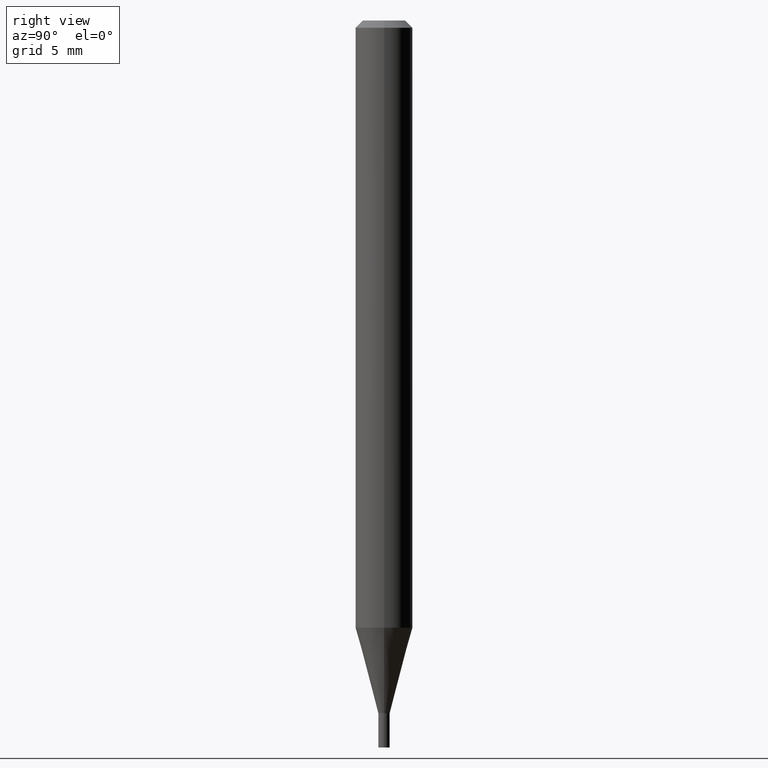
[diagram: clean part render]
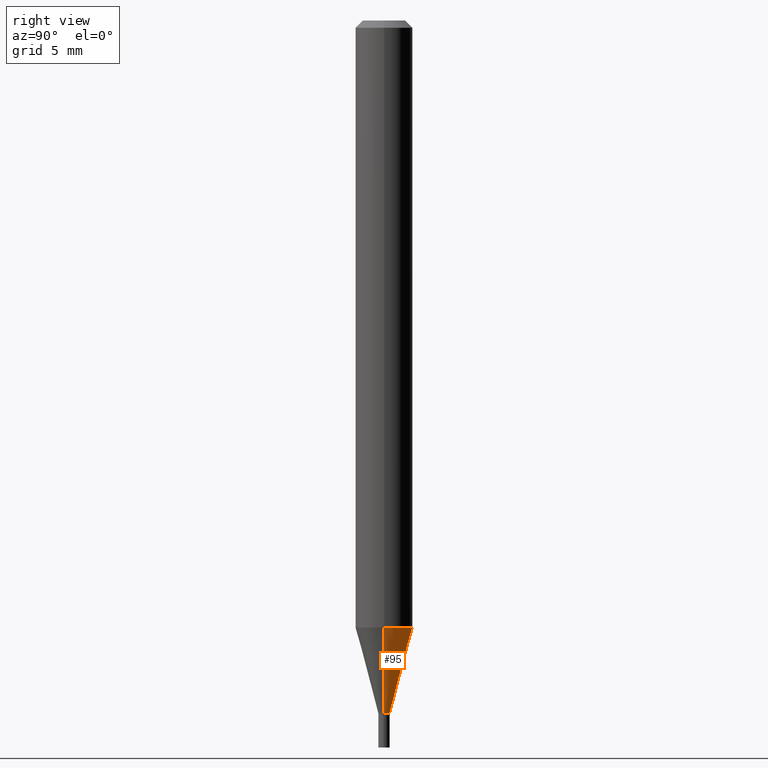
[diagram: same view with one face highlighted and labeled with its STEP entity id]
A machine part, right view. The second image highlights one B-rep face of the part: STEP entity #95.
In plain terms, the highlighted conical surface has half-angle 15 deg.
Its self-contained STEP definition (entity closure, byte-faithful):
#8 = EDGE_CURVE ( 'NONE', #189, #307, #401, .T. ) ;
#47 = DIRECTION ( 'NONE',  ( 0.2588190451025216832, 1.565188264969619798E-15, 0.9659258262890679791 ) ) ;
#57 = FACE_OUTER_BOUND ( 'NONE', #461, .T. ) ;
#65 = CONICAL_SURFACE ( 'NONE', #228, 0.01179999999999992340, 0.2617993877991502960 ) ;
#73 = EDGE_CURVE ( 'NONE', #176, #307, #445, .T. ) ;
#76 = ORIENTED_EDGE ( 'NONE', *, *, #73, .F. ) ;
#95 = ADVANCED_FACE ( 'NONE', ( #57 ), #65, .T. ) ;
#111 = DIRECTION ( 'NONE',  ( -0.2588190451025216832, 5.211531920934551831E-15, 0.9659258262890679791 ) ) ;
#112 = ORIENTED_EDGE ( 'NONE', *, *, #320, .F. ) ;
#126 = CARTESIAN_POINT ( 'NONE',  ( 3.494819470919178941E-29, -4.989675981340739504E-15, -1.429100000000000037 ) ) ;
#131 = CARTESIAN_POINT ( 'NONE',  ( 3.494819470919178941E-29, -4.989675981340739504E-15, -1.429100000000000037 ) ) ;
#175 = CARTESIAN_POINT ( 'NONE',  ( 0.05904999999999999832, -4.786334200759217729E-15, -1.252760599342370940 ) ) ;
#176 = VERTEX_POINT ( 'NONE', #175 ) ;
#189 = VERTEX_POINT ( 'NONE', #417 ) ;
#192 = CARTESIAN_POINT ( 'NONE',  ( 0.01179999999999992340, -5.072074940937436839E-15, -1.429100000000000037 ) ) ;
#203 = VECTOR ( 'NONE', #111, 39.37007874015748143 ) ;
#216 = CARTESIAN_POINT ( 'NONE',  ( 3.063586967309564449E-29, -4.373990254641843598E-15, -1.252760599342370940 ) ) ;
#227 = LINE ( 'NONE', #192, #269 ) ;
#228 = AXIS2_PLACEMENT_3D ( 'NONE', #131, #264, #380 ) ;
#241 = CIRCLE ( 'NONE', #321, 0.01179999999999992340 ) ;
#248 = VERTEX_POINT ( 'NONE', #347 ) ;
#264 = DIRECTION ( 'NONE',  ( -2.445468806185136597E-29, 3.491481338843145583E-15, 1.000000000000000000 ) ) ;
#269 = VECTOR ( 'NONE', #47, 39.37007874015748143 ) ;
#307 = VERTEX_POINT ( 'NONE', #372 ) ;
#320 = EDGE_CURVE ( 'NONE', #248, #176, #227, .T. ) ;
#321 = AXIS2_PLACEMENT_3D ( 'NONE', #126, #334, #435 ) ;
#334 = DIRECTION ( 'NONE',  ( -2.445468806185136597E-29, 3.491481338843145583E-15, 1.000000000000000000 ) ) ;
#347 = CARTESIAN_POINT ( 'NONE',  ( 0.01179999999999992340, -5.072074940937436839E-15, -1.429100000000000037 ) ) ;
#351 = DIRECTION ( 'NONE',  ( -2.445468806185136597E-29, 3.491481338843145583E-15, 1.000000000000000000 ) ) ;
#367 = DIRECTION ( 'NONE',  ( 1.000000000000000000, -6.982962677686273021E-15, 0.000000000000000000 ) ) ;
#370 = CARTESIAN_POINT ( 'NONE',  ( -0.01179999999999992340, -4.905831938521049028E-15, -1.429100000000000037 ) ) ;
#372 = CARTESIAN_POINT ( 'NONE',  ( -0.05904999999999999832, -3.954414769175504894E-15, -1.252760599342370940 ) ) ;
#380 = DIRECTION ( 'NONE',  ( 1.000000000000000000, -6.982962677686263555E-15, 0.000000000000000000 ) ) ;
#401 = LINE ( 'NONE', #370, #203 ) ;
#403 = ORIENTED_EDGE ( 'NONE', *, *, #460, .T. ) ;
#413 = ORIENTED_EDGE ( 'NONE', *, *, #8, .T. ) ;
#417 = CARTESIAN_POINT ( 'NONE',  ( -0.01179999999999992340, -4.430123353848276172E-15, -1.429100000000000037 ) ) ;
#435 = DIRECTION ( 'NONE',  ( 1.000000000000000000, -6.982962677686263555E-15, 0.000000000000000000 ) ) ;
#445 = CIRCLE ( 'NONE', #464, 0.05904999999999999832 ) ;
#460 = EDGE_CURVE ( 'NONE', #248, #189, #241, .T. ) ;
#461 = EDGE_LOOP ( 'NONE', ( #403, #413, #76, #112 ) ) ;
#464 = AXIS2_PLACEMENT_3D ( 'NONE', #216, #351, #367 ) ;